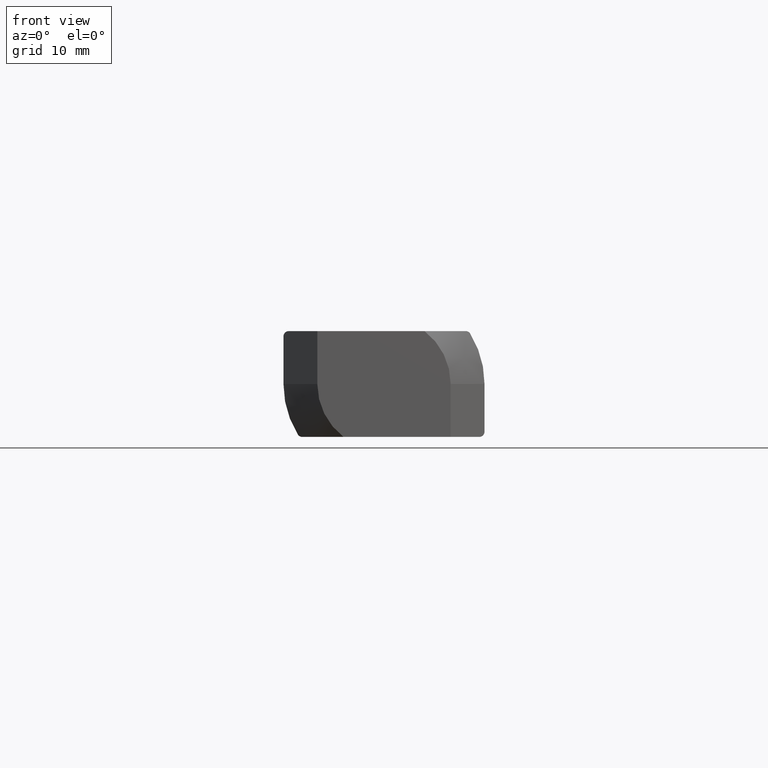
[diagram: clean part render]
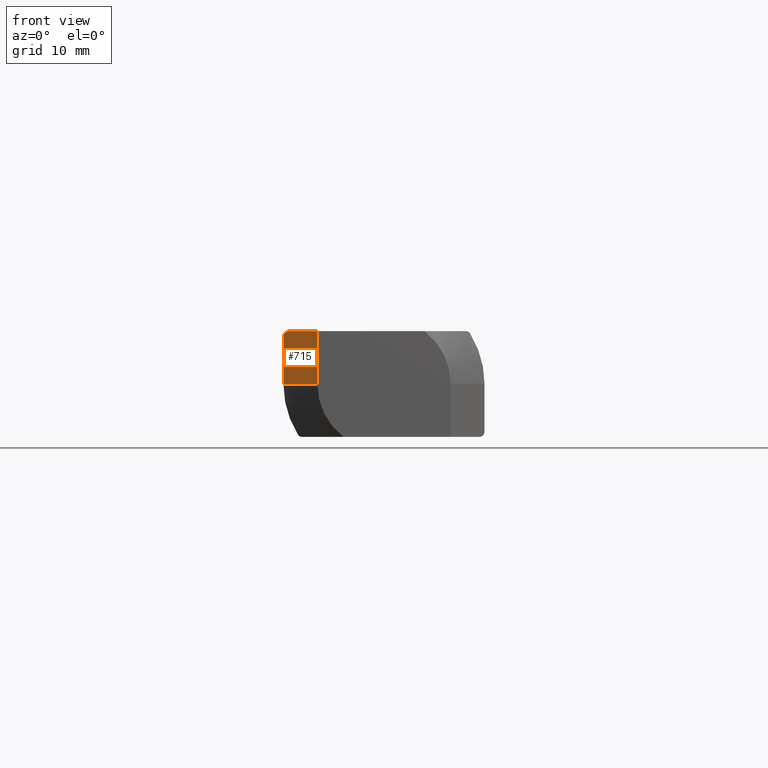
[diagram: same view with one face highlighted and labeled with its STEP entity id]
A machine part, front view. The second image highlights one B-rep face of the part: STEP entity #715.
In plain terms, the highlighted planar face has unit normal (0.7071, 0.7071, -0).
Its self-contained STEP definition (entity closure, byte-faithful):
#49 = VERTEX_POINT ( 'NONE', #863 ) ;
#61 = CARTESIAN_POINT ( 'NONE',  ( -9.500000000000001776, -1.150000000000000355, 4.500000000000000888 ) ) ;
#76 = DIRECTION ( 'NONE',  ( -0.000000000000000000, -0.000000000000000000, -1.000000000000000000 ) ) ;
#116 = ORIENTED_EDGE ( 'NONE', *, *, #383, .T. ) ;
#147 = CARTESIAN_POINT ( 'NONE',  ( -6.300000000000001599, -4.350000000000000533, 0.000000000000000000 ) ) ;
#166 = EDGE_CURVE ( 'NONE', #627, #49, #228, .T. ) ;
#212 = CARTESIAN_POINT ( 'NONE',  ( -9.500000000000001776, -1.150000000000000799, 4.792893218813452982 ) ) ;
#228 = LINE ( 'NONE', #718, #499 ) ;
#236 = AXIS2_PLACEMENT_3D ( 'NONE', #817, #546, #741 ) ;
#251 = CARTESIAN_POINT ( 'NONE',  ( -9.500000000000001776, -1.150000000000000355, 5.000000000000000000 ) ) ;
#256 = ORIENTED_EDGE ( 'NONE', *, *, #166, .F. ) ;
#288 = LINE ( 'NONE', #560, #765 ) ;
#312 = CARTESIAN_POINT ( 'NONE',  ( -4.300000000000001599, -6.349999999999999645, 0.000000000000000000 ) ) ;
#324 = LINE ( 'NONE', #251, #411 ) ;
#351 = EDGE_CURVE ( 'NONE', #49, #407, #288, .T. ) ;
#363 = DIRECTION ( 'NONE',  ( 0.7071067811865477948, -0.7071067811865473507, -0.000000000000000000 ) ) ;
#364 = FACE_OUTER_BOUND ( 'NONE', #789, .T. ) ;
#381 = CARTESIAN_POINT ( 'NONE',  ( -9.500000000000001776, -1.150000000000004352, 0.000000000000000000 ) ) ;
#383 = EDGE_CURVE ( 'NONE', #627, #855, #614, .T. ) ;
#395 = VECTOR ( 'NONE', #598, 1000.000000000000000 ) ;
#407 = VERTEX_POINT ( 'NONE', #147 ) ;
#411 = VECTOR ( 'NONE', #811, 1000.000000000000000 ) ;
#438 = ORIENTED_EDGE ( 'NONE', *, *, #820, .F. ) ;
#444 = PLANE ( 'NONE',  #236 ) ;
#493 = CARTESIAN_POINT ( 'NONE',  ( -9.500000000000001776, -1.150000000000000355, 4.500000000000000888 ) ) ;
#499 = VECTOR ( 'NONE', #363, 999.9999999999998863 ) ;
#546 = DIRECTION ( 'NONE',  ( 0.7071067811865473507, 0.7071067811865477948, -0.000000000000000000 ) ) ;
#560 = CARTESIAN_POINT ( 'NONE',  ( -6.300000000000000711, -4.349999999999999645, 5.000000000000000000 ) ) ;
#598 = DIRECTION ( 'NONE',  ( -0.7071067811865476838, 0.7071067811865474617, 0.000000000000000000 ) ) ;
#614 =( BOUNDED_CURVE ( )  B_SPLINE_CURVE ( 3, ( #866, #712, #212, #61 ),
 .UNSPECIFIED., .F., .T. ) 
 B_SPLINE_CURVE_WITH_KNOTS ( ( 4, 4 ),
 ( 1.570796326794896558, 3.141592653589793116 ),
 .UNSPECIFIED. ) 
 CURVE ( )  GEOMETRIC_REPRESENTATION_ITEM ( )  RATIONAL_B_SPLINE_CURVE ( ( 1.000000000000000000, 0.8047378541243649375, 0.8047378541243649375, 1.000000000000000000 ) ) 
 REPRESENTATION_ITEM ( '' )  );
#627 = VERTEX_POINT ( 'NONE', #788 ) ;
#664 = LINE ( 'NONE', #312, #395 ) ;
#712 = CARTESIAN_POINT ( 'NONE',  ( -9.292893218813453871, -1.357106781186548261, 5.000000000000000888 ) ) ;
#715 = ADVANCED_FACE ( 'NONE', ( #364 ), #444, .F. ) ;
#718 = CARTESIAN_POINT ( 'NONE',  ( -6.300000000000000711, -4.349999999999999645, 5.000000000000000000 ) ) ;
#741 = DIRECTION ( 'NONE',  ( -0.7071067811865477948, 0.7071067811865473507, 0.000000000000000000 ) ) ;
#765 = VECTOR ( 'NONE', #76, 1000.000000000000000 ) ;
#788 = CARTESIAN_POINT ( 'NONE',  ( -9.000000000000001776, -1.650000000000000799, 5.000000000000000000 ) ) ;
#789 = EDGE_LOOP ( 'NONE', ( #256, #116, #892, #438, #906 ) ) ;
#798 = EDGE_CURVE ( 'NONE', #855, #819, #324, .T. ) ;
#811 = DIRECTION ( 'NONE',  ( -0.000000000000000000, -0.000000000000000000, -1.000000000000000000 ) ) ;
#817 = CARTESIAN_POINT ( 'NONE',  ( -6.300000000000000711, -4.349999999999999645, 5.000000000000000000 ) ) ;
#819 = VERTEX_POINT ( 'NONE', #381 ) ;
#820 = EDGE_CURVE ( 'NONE', #407, #819, #664, .T. ) ;
#855 = VERTEX_POINT ( 'NONE', #493 ) ;
#863 = CARTESIAN_POINT ( 'NONE',  ( -6.300000000000000711, -4.349999999999999645, 5.000000000000000000 ) ) ;
#866 = CARTESIAN_POINT ( 'NONE',  ( -9.000000000000001776, -1.650000000000000799, 5.000000000000000000 ) ) ;
#892 = ORIENTED_EDGE ( 'NONE', *, *, #798, .T. ) ;
#906 = ORIENTED_EDGE ( 'NONE', *, *, #351, .F. ) ;